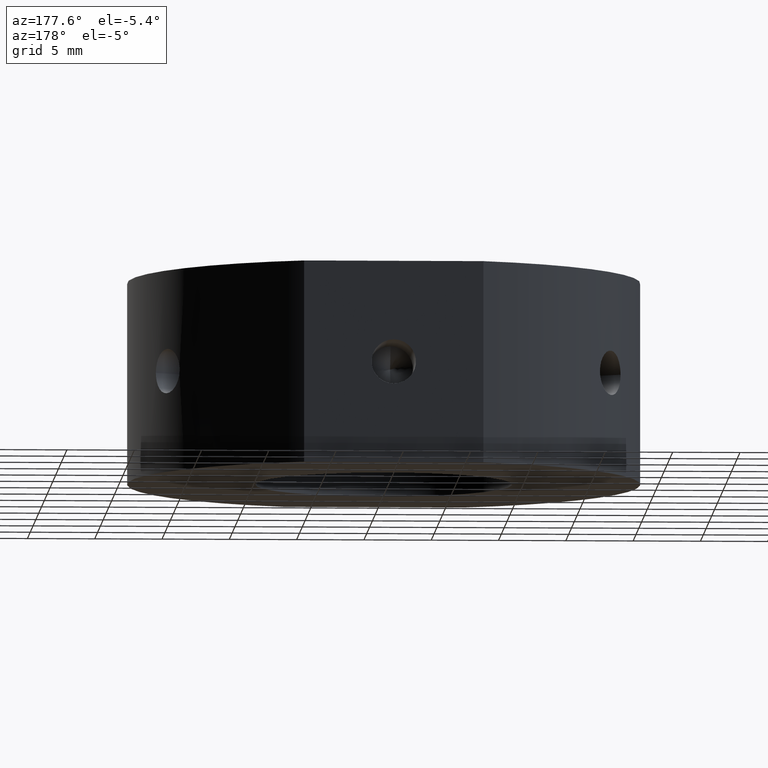
[diagram: clean part render]
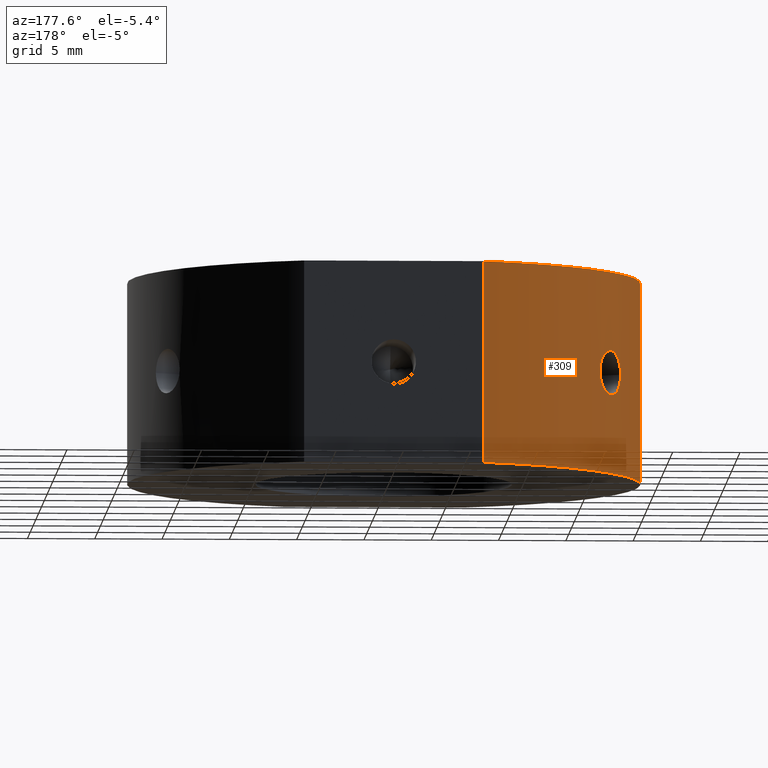
[diagram: same view with one face highlighted and labeled with its STEP entity id]
A machine part, auxiliary view. The second image highlights one B-rep face of the part: STEP entity #309.
In plain terms, the highlighted cylindrical surface (partial cylindrical patch) has radius 19.05 mm, axis along (-0, -0, -1).
Its self-contained STEP definition (entity closure, byte-faithful):
#12 = FACE_OUTER_BOUND ( 'NONE', #424, .T. ) ;
#16 = DIRECTION ( 'NONE',  ( -1.000000000000000000, 0.0000000000000000000, 1.365923996832131600E-016 ) ) ;
#24 = LINE ( 'NONE', #967, #679 ) ;
#26 = CARTESIAN_POINT ( 'NONE',  ( -16.22609853266656500, 9.981293553539648800, -1.565958987164358700 ) ) ;
#35 = CARTESIAN_POINT ( 'NONE',  ( -15.61700220618944400, 10.90927086347169700, -0.2171185821548924900 ) ) ;
#38 = VERTEX_POINT ( 'NONE', #603 ) ;
#83 = DIRECTION ( 'NONE',  ( -1.224646799147350500E-016, -0.0000000000000000000, -1.000000000000000000 ) ) ;
#101 = AXIS2_PLACEMENT_3D ( 'NONE', #617, #358, #523 ) ;
#102 = CARTESIAN_POINT ( 'NONE',  ( -16.98206950875816200, 8.633369188987620300, -1.319077114444312300 ) ) ;
#112 = CARTESIAN_POINT ( 'NONE',  ( -15.84094837056622000, 10.58172070039343100, -1.089914829125267200 ) ) ;
#153 = VERTEX_POINT ( 'NONE', #760 ) ;
#175 = CARTESIAN_POINT ( 'NONE',  ( -16.06865711440272500, 10.23273234951785700, 1.431574881345300600 ) ) ;
#187 = CARTESIAN_POINT ( 'NONE',  ( -17.26078413097466000, 8.060262476116593100, -0.1090743481477800300 ) ) ;
#205 = CARTESIAN_POINT ( 'NONE',  ( -16.27981134241169100, 9.893505271124141100, -1.597140314786021900 ) ) ;
#217 = CARTESIAN_POINT ( 'NONE',  ( -15.72940987577991700, 10.74685838078784000, 0.8296514157329821800 ) ) ;
#257 = CARTESIAN_POINT ( 'NONE',  ( -17.11786375428770400, 8.360892041431421600, 1.015477476588795300 ) ) ;
#263 = CARTESIAN_POINT ( 'NONE',  ( -17.26078413097466000, 8.060262476116593100, 0.0000000000000000000 ) ) ;
#271 = EDGE_CURVE ( 'NONE', #686, #405, #595, .T. ) ;
#274 = CARTESIAN_POINT ( 'NONE',  ( -17.11481330712286900, 8.365958994713663400, -1.006013819237388600 ) ) ;
#279 = CARTESIAN_POINT ( 'NONE',  ( -16.38874630295441300, 9.711987361589580200, -1.639296301674256300 ) ) ;
#285 = EDGE_LOOP ( 'NONE', ( #399, #453 ) ) ;
#309 = ADVANCED_FACE ( 'NONE', ( #12, #1056 ), #1043, .T. ) ;
#314 = CARTESIAN_POINT ( 'NONE',  ( -15.61078413097466100, 10.91814630860521300, 2.020667257415075000E-016 ) ) ;
#329 = CARTESIAN_POINT ( 'NONE',  ( -17.01578596840682100, 8.565707599905358900, 1.243572887463718200 ) ) ;
#331 = ORIENTED_EDGE ( 'NONE', *, *, #1031, .F. ) ;
#332 = EDGE_CURVE ( 'NONE', #38, #153, #494, .T. ) ;
#358 = DIRECTION ( 'NONE',  ( -1.224646799147350500E-016, -0.0000000000000000000, -1.000000000000000000 ) ) ;
#364 = CARTESIAN_POINT ( 'NONE',  ( -17.16720424343114000, 8.257917588788364700, -0.8266798870898415300 ) ) ;
#365 = CARTESIAN_POINT ( 'NONE',  ( -19.05000000000000100, 0.0000000000000000000, -31.93906810035839800 ) ) ;
#369 = CARTESIAN_POINT ( 'NONE',  ( -15.65910778414099100, 10.84880493487175800, -0.5315211267713236800 ) ) ;
#377 = CARTESIAN_POINT ( 'NONE',  ( -15.97186612991308200, 10.38315936127314700, -1.312144534480053300 ) ) ;
#399 = ORIENTED_EDGE ( 'NONE', *, *, #332, .T. ) ;
#400 = CARTESIAN_POINT ( 'NONE',  ( -16.44265620317504800, 9.620469118372032100, 1.649913834276573800 ) ) ;
#401 = CARTESIAN_POINT ( 'NONE',  ( -15.63578121101101300, 10.88263047329953200, 0.4325064175069614500 ) ) ;
#405 = VERTEX_POINT ( 'NONE', #997 ) ;
#423 = CARTESIAN_POINT ( 'NONE',  ( -16.70693370283708700, 9.153796595357516000, 1.597668135974697100 ) ) ;
#424 = EDGE_LOOP ( 'NONE', ( #882, #481, #960, #331 ) ) ;
#426 = EDGE_CURVE ( 'NONE', #405, #442, #24, .T. ) ;
#429 = B_SPLINE_CURVE_WITH_KNOTS ( 'NONE', 3,
 ( #314, #929, #401, #217, #828, #1098, #839, #175, #440, #705, #792, #854, #400, #1096, #576, #423, #1118, #596, #861, #1125, #329, #257, #507, #606, #1032, #873 ),
 .UNSPECIFIED., .F., .F.,
 ( 4, 2, 2, 2, 2, 2, 2, 2, 2, 2, 2, 2, 4 ),
 ( 0.005161068146131811900, 0.005806051757352751300, 0.006451035368573689700, 0.006773527174184160700, 0.007096018979794631700, 0.007418510785405103500, 0.007741002591015573600, 0.008063494396626045400, 0.008385986202236517300, 0.008708478007846987300, 0.009030969813457459200, 0.009675953424678397600, 0.01032093703589933600 ),
 .UNSPECIFIED. ) ;
#440 = CARTESIAN_POINT ( 'NONE',  ( -16.11941003428965000, 10.15268887284264900, 1.482298987517374400 ) ) ;
#442 = VERTEX_POINT ( 'NONE', #1058 ) ;
#446 = DIRECTION ( 'NONE',  ( -1.000000000000000000, 0.0000000000000000000, 1.365923996832131600E-016 ) ) ;
#453 = ORIENTED_EDGE ( 'NONE', *, *, #542, .T. ) ;
#455 = CARTESIAN_POINT ( 'NONE',  ( 2.992922652324802300E-015, 0.0000000000000000000, -7.500000000000003600 ) ) ;
#456 = AXIS2_PLACEMENT_3D ( 'NONE', #1059, #83, #446 ) ;
#462 = CARTESIAN_POINT ( 'NONE',  ( -17.08408191748519700, 8.428668763515920800, -1.090881399473322600 ) ) ;
#481 = ORIENTED_EDGE ( 'NONE', *, *, #271, .T. ) ;
#494 = B_SPLINE_CURVE_WITH_KNOTS ( 'NONE', 3,
 ( #263, #187, #878, #791, #892, #876, #364, #274, #462, #102, #554, #636, #735, #550, #279, #205, #26, #895, #898, #377, #544, #112, #725, #991, #973, #369, #982, #35, #627, #639 ),
 .UNSPECIFIED., .F., .F.,
 ( 4, 2, 2, 2, 2, 2, 2, 2, 2, 2, 2, 2, 2, 2, 4 ),
 ( 0.0000000000000000000, 0.0003225667591332386800, 0.0006451335182664773600, 0.0009677002773997159900, 0.001290267036532954500, 0.001935400554799430700, 0.002580534073065906400, 0.002903100832199144700, 0.003225667591332382600, 0.003548234350465620900, 0.003870801109598858700, 0.004193367868732097500, 0.004515934627865334500, 0.004838501386998573200, 0.005161068146131811900 ),
 .UNSPECIFIED. ) ;
#507 = CARTESIAN_POINT ( 'NONE',  ( -17.17126006801131100, 8.249677066207423700, 0.8316350020139826600 ) ) ;
#523 = DIRECTION ( 'NONE',  ( -1.000000000000000000, 0.0000000000000000000, 0.0000000000000000000 ) ) ;
#542 = EDGE_CURVE ( 'NONE', #153, #38, #429, .T. ) ;
#543 = VERTEX_POINT ( 'NONE', #1122 ) ;
#544 = CARTESIAN_POINT ( 'NONE',  ( -15.92618014553059200, 10.45300168526661500, -1.243950164245569300 ) ) ;
#550 = CARTESIAN_POINT ( 'NONE',  ( -16.44424687848708200, 9.617735622714874900, -1.650038726114881200 ) ) ;
#554 = CARTESIAN_POINT ( 'NONE',  ( -16.89814471188523700, 8.797424155234013600, -1.441988345408365100 ) ) ;
#576 = CARTESIAN_POINT ( 'NONE',  ( -16.60454392780769000, 9.338241098283829100, 1.639446042719377100 ) ) ;
#595 = CIRCLE ( 'NONE', #456, 19.05000000000000100 ) ;
#596 = CARTESIAN_POINT ( 'NONE',  ( -16.85123543161669700, 8.885289606752433400, 1.483320146304212900 ) ) ;
#603 = CARTESIAN_POINT ( 'NONE',  ( -17.26078413097466000, 8.060262476116593100, 0.0000000000000000000 ) ) ;
#606 = CARTESIAN_POINT ( 'NONE',  ( -17.24226294087477400, 8.100229175629813500, 0.4347756836946269900 ) ) ;
#615 = DIRECTION ( 'NONE',  ( -1.224646799147350500E-016, -0.0000000000000000000, -1.000000000000000000 ) ) ;
#617 = CARTESIAN_POINT ( 'NONE',  ( 0.0000000000000000000, 0.0000000000000000000, -31.93906810035839800 ) ) ;
#627 = CARTESIAN_POINT ( 'NONE',  ( -15.61078413097466600, 10.91814630860521600, -0.1077124504069219700 ) ) ;
#636 = CARTESIAN_POINT ( 'NONE',  ( -16.71100289690693000, 9.147914989246352500, -1.606565970892553000 ) ) ;
#637 = DIRECTION ( 'NONE',  ( -1.224646799147350500E-016, -0.0000000000000000000, -1.000000000000000000 ) ) ;
#639 = CARTESIAN_POINT ( 'NONE',  ( -15.61078413097466100, 10.91814630860521300, 2.020667257415075000E-016 ) ) ;
#679 = VECTOR ( 'NONE', #615, 1000.000000000000000 ) ;
#686 = VERTEX_POINT ( 'NONE', #776 ) ;
#705 = CARTESIAN_POINT ( 'NONE',  ( -16.22495765369974000, 9.983146815406009000, 1.565215042464102900 ) ) ;
#725 = CARTESIAN_POINT ( 'NONE',  ( -15.80278798104325600, 10.63851398211107800, -1.006555369401221700 ) ) ;
#735 = CARTESIAN_POINT ( 'NONE',  ( -16.60575066371612600, 9.337982679935455700, -1.649922225843774900 ) ) ;
#760 = CARTESIAN_POINT ( 'NONE',  ( -15.61078413097466100, 10.91814630860521300, 2.020667257415075000E-016 ) ) ;
#767 = EDGE_CURVE ( 'NONE', #686, #543, #988, .T. ) ;
#776 = CARTESIAN_POINT ( 'NONE',  ( -19.04999999999999700, 0.0000000000000000000, 7.499999999999995600 ) ) ;
#791 = CARTESIAN_POINT ( 'NONE',  ( -17.23836540392017000, 8.108125638495337700, -0.4272846039626473400 ) ) ;
#792 = CARTESIAN_POINT ( 'NONE',  ( -16.27970646407071700, 9.893673812868407000, 1.597061655437756100 ) ) ;
#797 = AXIS2_PLACEMENT_3D ( 'NONE', #455, #893, #16 ) ;
#798 = VECTOR ( 'NONE', #637, 1000.000000000000000 ) ;
#828 = CARTESIAN_POINT ( 'NONE',  ( -15.79892292221153300, 10.64517375214902900, 1.013711685874963700 ) ) ;
#839 = CARTESIAN_POINT ( 'NONE',  ( -15.97154104330787300, 10.38366166142979600, 1.311713316252953100 ) ) ;
#854 = CARTESIAN_POINT ( 'NONE',  ( -16.38825814635372800, 9.712806957837399200, 1.639145259101393500 ) ) ;
#861 = CARTESIAN_POINT ( 'NONE',  ( -16.89522804527899400, 8.801240084486893900, 1.432701528351383800 ) ) ;
#873 = CARTESIAN_POINT ( 'NONE',  ( -17.26078413097466000, 8.060262476116593100, 0.0000000000000000000 ) ) ;
#876 = CARTESIAN_POINT ( 'NONE',  ( -17.18914022106033800, 8.212045162043901700, -0.7319207306396169300 ) ) ;
#878 = CARTESIAN_POINT ( 'NONE',  ( -17.25624336313245200, 8.070006701424999200, -0.2163155206198690800 ) ) ;
#882 = ORIENTED_EDGE ( 'NONE', *, *, #767, .F. ) ;
#892 = CARTESIAN_POINT ( 'NONE',  ( -17.22480817658726000, 8.136965685222950400, -0.5321096267850425900 ) ) ;
#893 = DIRECTION ( 'NONE',  ( -1.224646799147350500E-016, -0.0000000000000000000, -1.000000000000000000 ) ) ;
#895 = CARTESIAN_POINT ( 'NONE',  ( -16.12044553234553500, 10.15104578023452600, -1.483261654121718500 ) ) ;
#898 = CARTESIAN_POINT ( 'NONE',  ( -16.06869690214718800, 10.23266758281456900, -1.431593881218848900 ) ) ;
#929 = CARTESIAN_POINT ( 'NONE',  ( -15.61078413097466100, 10.91814630860521100, 0.2153748434078934500 ) ) ;
#960 = ORIENTED_EDGE ( 'NONE', *, *, #426, .T. ) ;
#967 = CARTESIAN_POINT ( 'NONE',  ( -6.654321903845666200, 17.84999999999999400, -31.93906810035839800 ) ) ;
#971 = CIRCLE ( 'NONE', #797, 19.05000000000000100 ) ;
#973 = CARTESIAN_POINT ( 'NONE',  ( -15.70626567717200600, 10.78041945326483900, -0.7314100125181867100 ) ) ;
#982 = CARTESIAN_POINT ( 'NONE',  ( -15.64122404259505700, 10.87451420202597600, -0.4286535483668664800 ) ) ;
#988 = LINE ( 'NONE', #365, #798 ) ;
#991 = CARTESIAN_POINT ( 'NONE',  ( -15.73557630695730400, 10.73767786857576200, -0.8278835885026996100 ) ) ;
#997 = CARTESIAN_POINT ( 'NONE',  ( -6.654321903845645800, 17.85000000000000100, 7.499999999999993800 ) ) ;
#1031 = EDGE_CURVE ( 'NONE', #543, #442, #971, .T. ) ;
#1032 = CARTESIAN_POINT ( 'NONE',  ( -17.26078413097466300, 8.060262476116593100, 0.2180980059723577600 ) ) ;
#1043 = CYLINDRICAL_SURFACE ( 'NONE', #101, 19.05000000000000100 ) ;
#1056 = FACE_BOUND ( 'NONE', #285, .T. ) ;
#1058 = CARTESIAN_POINT ( 'NONE',  ( -6.654321903845647600, 17.85000000000000100, -7.500000000000002700 ) ) ;
#1059 = CARTESIAN_POINT ( 'NONE',  ( 4.829892851045827200E-015, 0.0000000000000000000, 7.499999999999992900 ) ) ;
#1096 = CARTESIAN_POINT ( 'NONE',  ( -16.55161432991496500, 9.431777782958738100, 1.650085145770904300 ) ) ;
#1098 = CARTESIAN_POINT ( 'NONE',  ( -15.92504344385815100, 10.45472566546278900, 1.242020872440627400 ) ) ;
#1118 = CARTESIAN_POINT ( 'NONE',  ( -16.75699231797121400, 9.061772201015115200, 1.566042349243275800 ) ) ;
#1122 = CARTESIAN_POINT ( 'NONE',  ( -19.04999999999999700, 0.0000000000000000000, -7.500000000000000900 ) ) ;
#1125 = CARTESIAN_POINT ( 'NONE',  ( -16.97741998564464800, 8.641629959550128200, 1.313167906712924000 ) ) ;